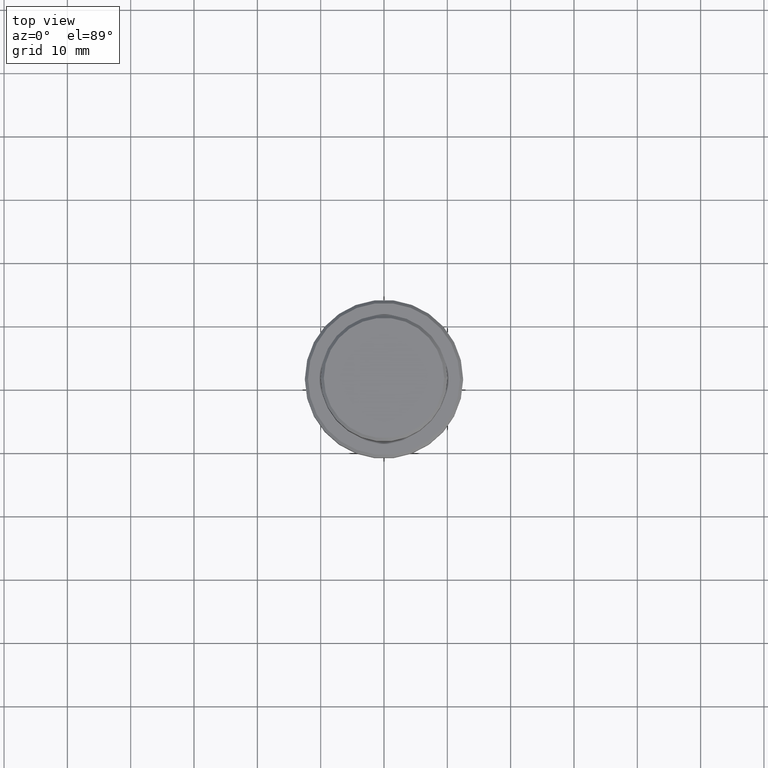
[diagram: clean part render]
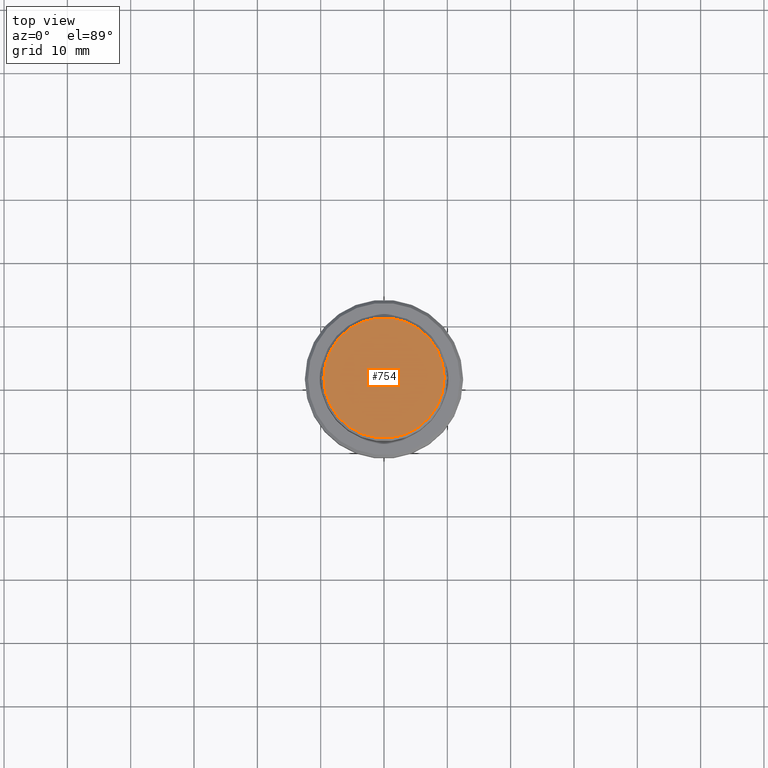
[diagram: same view with one face highlighted and labeled with its STEP entity id]
A machine part, top view. The second image highlights one B-rep face of the part: STEP entity #754.
In plain terms, the highlighted planar face has unit normal (0, -0, 1).
Its self-contained STEP definition (entity closure, byte-faithful):
#11 = DIRECTION ( 'NONE',  ( 1.000000000000000000, 0.000000000000000000, 0.000000000000000000 ) ) ;
#92 = DIRECTION ( 'NONE',  ( 1.000000000000000000, 0.000000000000000000, 0.000000000000000000 ) ) ;
#128 = CARTESIAN_POINT ( 'NONE',  ( 0.000000000000000000, 0.000000000000000000, 0.000000000000000000 ) ) ;
#230 = CARTESIAN_POINT ( 'NONE',  ( 9.499999999999980460, 1.194030629168668089E-15, 0.000000000000000000 ) ) ;
#308 = CARTESIAN_POINT ( 'NONE',  ( 0.000000000000000000, 0.000000000000000000, 0.000000000000000000 ) ) ;
#386 = ORIENTED_EDGE ( 'NONE', *, *, #611, .T. ) ;
#418 = CARTESIAN_POINT ( 'NONE',  ( 0.000000000000000000, 0.000000000000000000, 0.000000000000000000 ) ) ;
#563 = ORIENTED_EDGE ( 'NONE', *, *, #616, .T. ) ;
#611 = EDGE_CURVE ( 'NONE', #730, #1022, #1364, .T. ) ;
#616 = EDGE_CURVE ( 'NONE', #1022, #730, #1154, .T. ) ;
#730 = VERTEX_POINT ( 'NONE', #230 ) ;
#754 = ADVANCED_FACE ( 'NONE', ( #796 ), #915, .T. ) ;
#774 = DIRECTION ( 'NONE',  ( -0.000000000000000000, -0.000000000000000000, 1.000000000000000000 ) ) ;
#796 = FACE_OUTER_BOUND ( 'NONE', #1008, .T. ) ;
#871 = DIRECTION ( 'NONE',  ( 1.000000000000000000, 0.000000000000000000, 0.000000000000000000 ) ) ;
#908 = DIRECTION ( 'NONE',  ( 0.000000000000000000, -0.000000000000000000, 1.000000000000000000 ) ) ;
#915 = PLANE ( 'NONE',  #1016 ) ;
#1008 = EDGE_LOOP ( 'NONE', ( #563, #386 ) ) ;
#1016 = AXIS2_PLACEMENT_3D ( 'NONE', #128, #908, #11 ) ;
#1022 = VERTEX_POINT ( 'NONE', #1153 ) ;
#1063 = AXIS2_PLACEMENT_3D ( 'NONE', #308, #1317, #871 ) ;
#1084 = AXIS2_PLACEMENT_3D ( 'NONE', #418, #774, #92 ) ;
#1153 = CARTESIAN_POINT ( 'NONE',  ( -9.499999999999980460, 0.000000000000000000, 0.000000000000000000 ) ) ;
#1154 = CIRCLE ( 'NONE', #1084, 9.499999999999980460 ) ;
#1317 = DIRECTION ( 'NONE',  ( -0.000000000000000000, -0.000000000000000000, 1.000000000000000000 ) ) ;
#1364 = CIRCLE ( 'NONE', #1063, 9.499999999999980460 ) ;